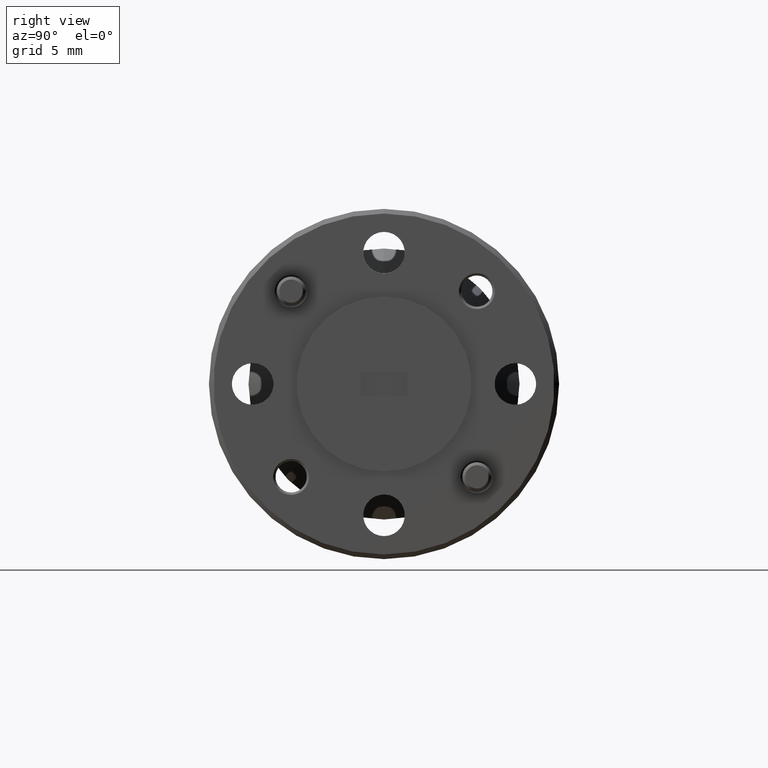
[diagram: clean part render]
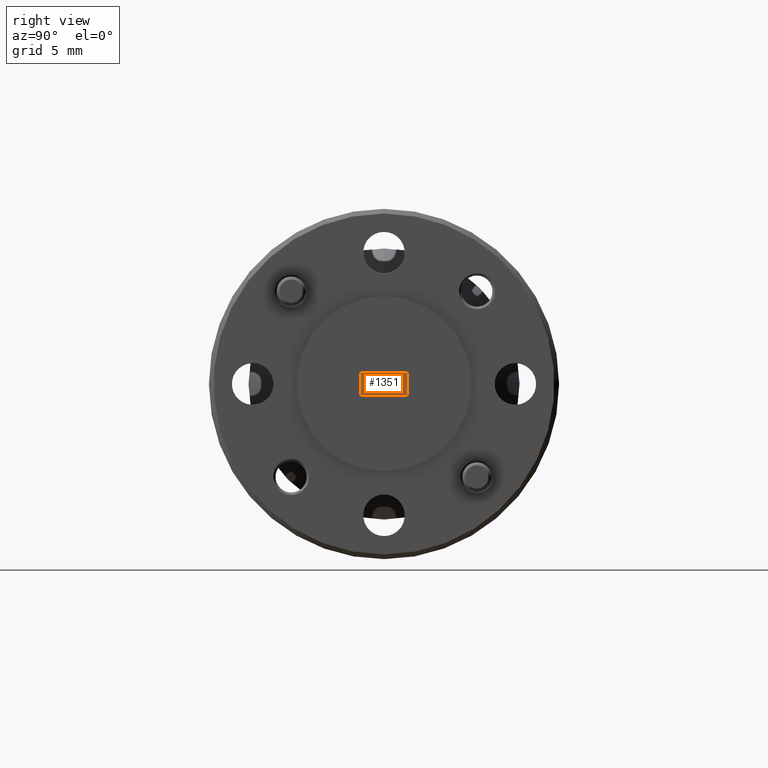
[diagram: same view with one face highlighted and labeled with its STEP entity id]
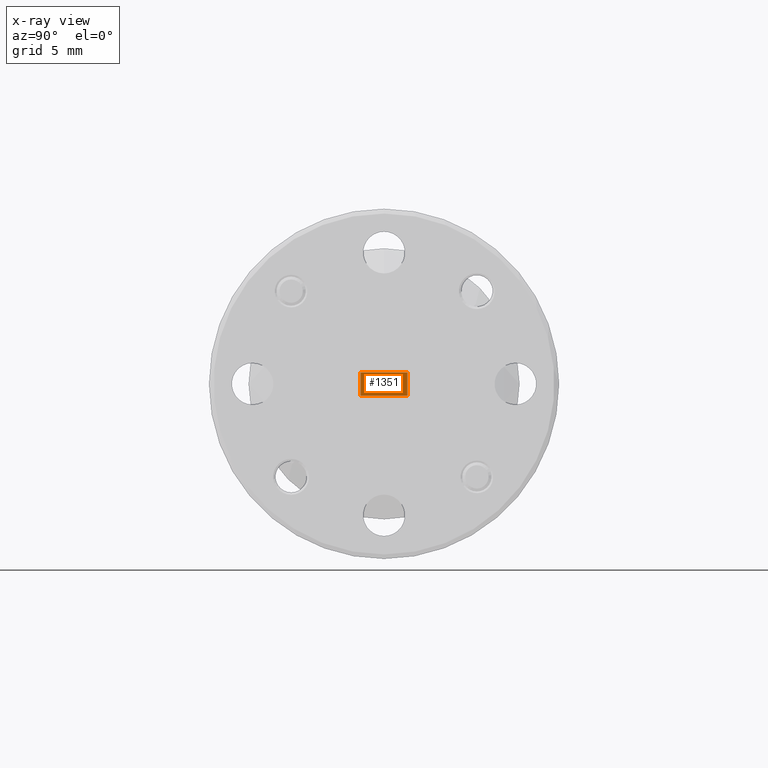
[diagram: x-ray of the same camera — body ghosted, the highlighted face saturated]
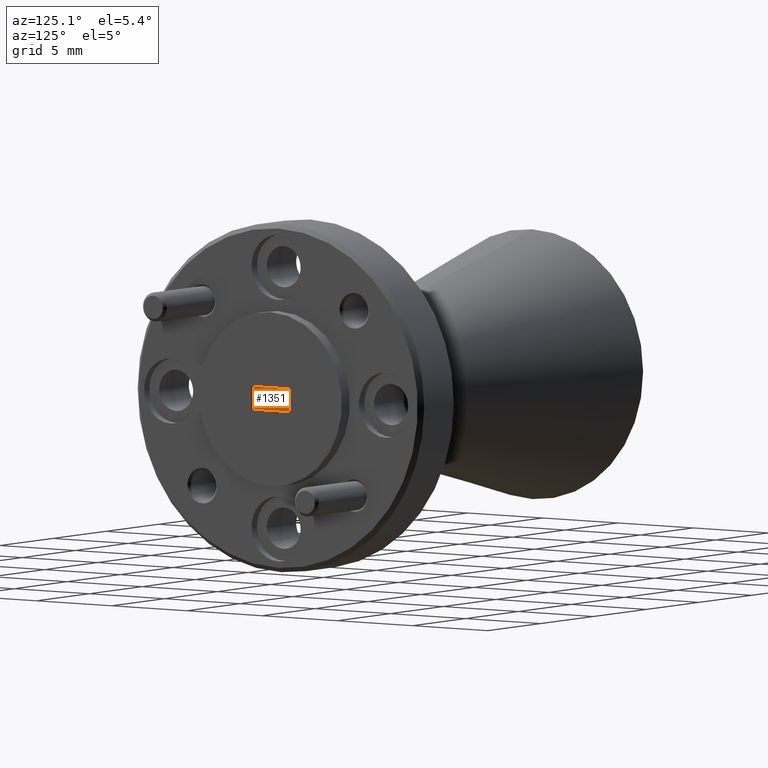
[diagram: same view with one face highlighted and labeled with its STEP entity id]
A machine part, right view. The second image highlights one B-rep face of the part: STEP entity #1351.
The next image is the same camera in x-ray: the body ghosted, the highlighted face saturated — about 0% of this face is hidden behind the body in this view.
A second angle (auxiliary view) of the same face is appended — the face is thin or edge-on in the first view.
In plain terms, the highlighted planar face has unit normal (-1, 0, 0).
Its self-contained STEP definition (entity closure, byte-faithful):
#112 = EDGE_CURVE ( 'NONE', #365, #1765, #1489, .T. ) ;
#157 = FACE_OUTER_BOUND ( 'NONE', #636, .T. ) ;
#201 = PLANE ( 'NONE',  #204 ) ;
#204 = AXIS2_PLACEMENT_3D ( 'NONE', #1716, #1871, #2061 ) ;
#265 = VERTEX_POINT ( 'NONE', #1346 ) ;
#304 = LINE ( 'NONE', #1918, #958 ) ;
#317 = ORIENTED_EDGE ( 'NONE', *, *, #1662, .T. ) ;
#365 = VERTEX_POINT ( 'NONE', #515 ) ;
#432 = DIRECTION ( 'NONE',  ( 0.0000000000000000000, 1.000000000000000000, 0.0000000000000000000 ) ) ;
#515 = CARTESIAN_POINT ( 'NONE',  ( -0.01000000000000000000, 0.05000000000000000300, -0.02499999999999999100 ) ) ;
#559 = ORIENTED_EDGE ( 'NONE', *, *, #112, .T. ) ;
#596 = VECTOR ( 'NONE', #806, 39.37007874015748100 ) ;
#636 = EDGE_LOOP ( 'NONE', ( #2123, #559, #1271, #317 ) ) ;
#662 = VERTEX_POINT ( 'NONE', #959 ) ;
#668 = CARTESIAN_POINT ( 'NONE',  ( -0.01000000000000000000, 0.05000000000000000300, 0.02500000000000001500 ) ) ;
#723 = LINE ( 'NONE', #1544, #1010 ) ;
#742 = DIRECTION ( 'NONE',  ( -0.0000000000000000000, -1.000000000000000000, -0.0000000000000000000 ) ) ;
#806 = DIRECTION ( 'NONE',  ( -0.0000000000000000000, -0.0000000000000000000, 1.000000000000000000 ) ) ;
#880 = VECTOR ( 'NONE', #2119, 39.37007874015748100 ) ;
#958 = VECTOR ( 'NONE', #432, 39.37007874015748100 ) ;
#959 = CARTESIAN_POINT ( 'NONE',  ( -0.01000000000000000000, -0.05000000000000000300, 0.02500000000000001500 ) ) ;
#969 = CARTESIAN_POINT ( 'NONE',  ( -0.01000000000000000000, -0.05000000000000000300, 0.02500000000000001500 ) ) ;
#1010 = VECTOR ( 'NONE', #742, 39.37007874015748100 ) ;
#1271 = ORIENTED_EDGE ( 'NONE', *, *, #1327, .T. ) ;
#1327 = EDGE_CURVE ( 'NONE', #1765, #662, #723, .T. ) ;
#1346 = CARTESIAN_POINT ( 'NONE',  ( -0.01000000000000000000, -0.05000000000000000300, -0.02499999999999999100 ) ) ;
#1351 = ADVANCED_FACE ( 'NONE', ( #157 ), #201, .F. ) ;
#1453 = CARTESIAN_POINT ( 'NONE',  ( -0.01000000000000000000, 0.05000000000000000300, 0.02500000000000001500 ) ) ;
#1489 = LINE ( 'NONE', #1453, #596 ) ;
#1544 = CARTESIAN_POINT ( 'NONE',  ( -0.01000000000000000000, -0.05000000000000000300, 0.02500000000000001500 ) ) ;
#1576 = EDGE_CURVE ( 'NONE', #265, #365, #304, .T. ) ;
#1662 = EDGE_CURVE ( 'NONE', #662, #265, #1710, .T. ) ;
#1710 = LINE ( 'NONE', #969, #880 ) ;
#1716 = CARTESIAN_POINT ( 'NONE',  ( -0.01000000000000000000, 0.0000000000000000000, 0.0000000000000000000 ) ) ;
#1765 = VERTEX_POINT ( 'NONE', #668 ) ;
#1871 = DIRECTION ( 'NONE',  ( -1.000000000000000000, 0.0000000000000000000, 0.0000000000000000000 ) ) ;
#1918 = CARTESIAN_POINT ( 'NONE',  ( -0.01000000000000000000, -0.05000000000000000300, -0.02499999999999999100 ) ) ;
#2061 = DIRECTION ( 'NONE',  ( 0.0000000000000000000, 0.0000000000000000000, 1.000000000000000000 ) ) ;
#2119 = DIRECTION ( 'NONE',  ( 0.0000000000000000000, 0.0000000000000000000, -1.000000000000000000 ) ) ;
#2123 = ORIENTED_EDGE ( 'NONE', *, *, #1576, .T. ) ;